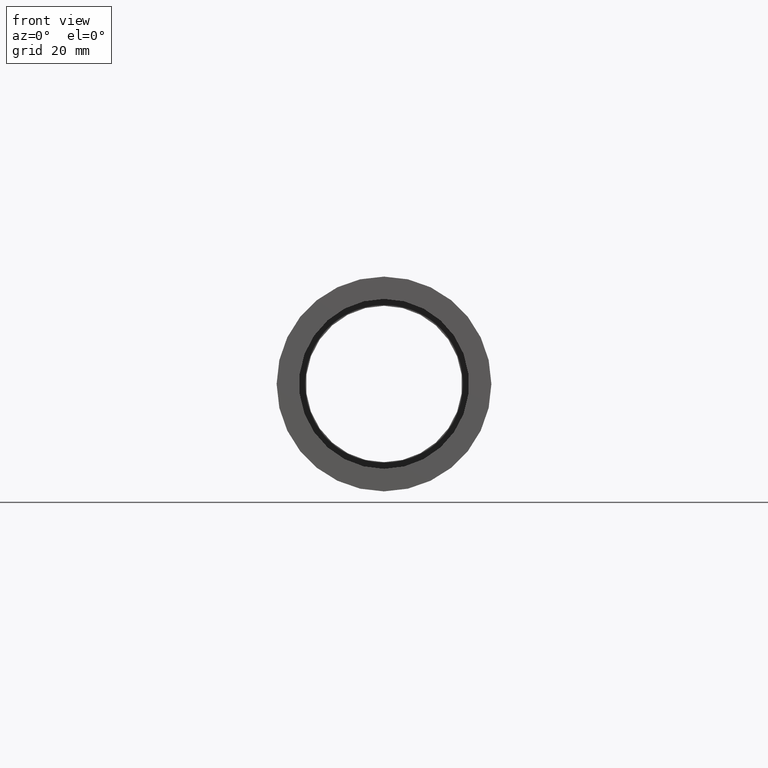
[diagram: clean part render]
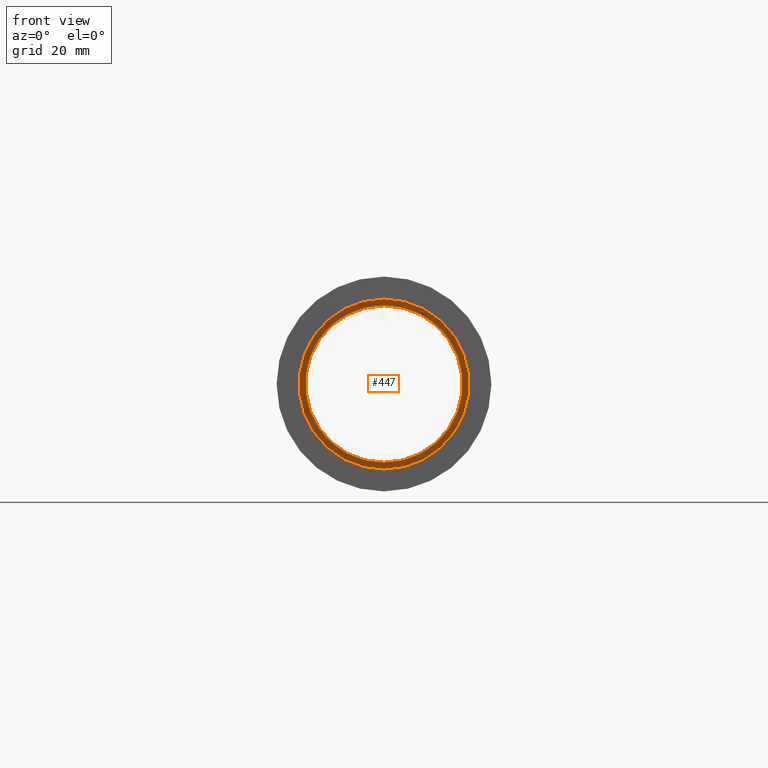
[diagram: same view with one face highlighted and labeled with its STEP entity id]
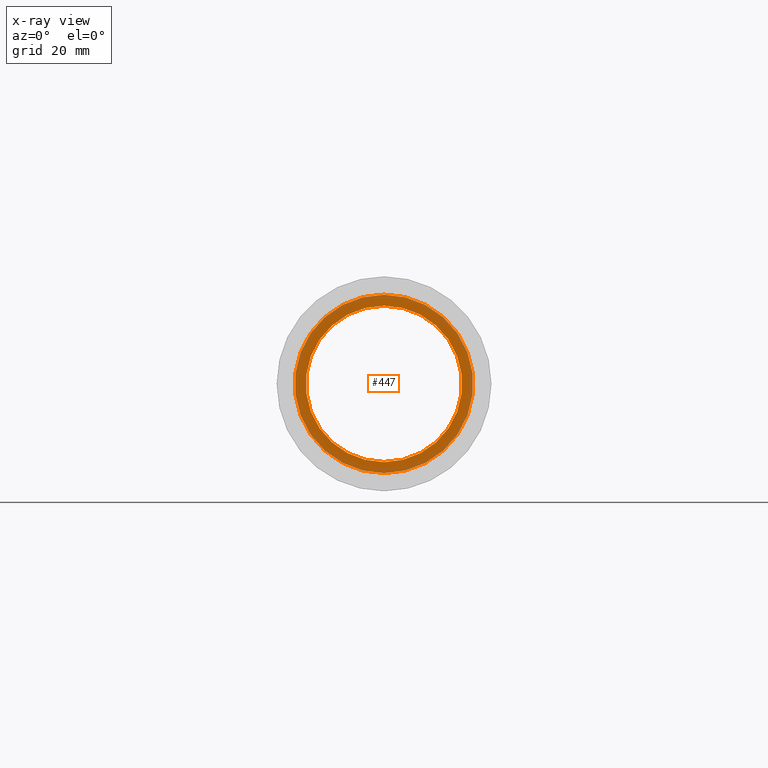
[diagram: x-ray of the same camera — body ghosted, the highlighted face saturated]
A machine part, front view. The second image highlights one B-rep face of the part: STEP entity #447.
The next image is the same camera in x-ray: the body ghosted, the highlighted face saturated — about 40% of this face is hidden behind the body in this view.
In plain terms, the highlighted planar face has unit normal (-0, 1, 0).
Its self-contained STEP definition (entity closure, byte-faithful):
#14 = DIRECTION ( 'NONE',  ( 0.0000000000000000000, 0.0000000000000000000, 1.000000000000000000 ) ) ;
#39 = VERTEX_POINT ( 'NONE', #455 ) ;
#43 = PLANE ( 'NONE',  #217 ) ;
#66 = CIRCLE ( 'NONE', #294, 21.10000000000000100 ) ;
#84 = FACE_BOUND ( 'NONE', #171, .T. ) ;
#93 = AXIS2_PLACEMENT_3D ( 'NONE', #565, #460, #324 ) ;
#142 = CARTESIAN_POINT ( 'NONE',  ( 0.0000000000000000000, 151.3999999999999800, 0.0000000000000000000 ) ) ;
#147 = DIRECTION ( 'NONE',  ( 0.0000000000000000000, 0.0000000000000000000, 1.000000000000000000 ) ) ;
#154 = VERTEX_POINT ( 'NONE', #276 ) ;
#156 = FACE_OUTER_BOUND ( 'NONE', #270, .T. ) ;
#171 = EDGE_LOOP ( 'NONE', ( #180, #439 ) ) ;
#180 = ORIENTED_EDGE ( 'NONE', *, *, #535, .T. ) ;
#194 = DIRECTION ( 'NONE',  ( 0.0000000000000000000, 0.0000000000000000000, 1.000000000000000000 ) ) ;
#203 = ORIENTED_EDGE ( 'NONE', *, *, #332, .F. ) ;
#217 = AXIS2_PLACEMENT_3D ( 'NONE', #624, #571, #147 ) ;
#222 = CIRCLE ( 'NONE', #93, 21.10000000000000100 ) ;
#238 = CIRCLE ( 'NONE', #541, 18.50000000000000000 ) ;
#240 = DIRECTION ( 'NONE',  ( -0.0000000000000000000, 1.000000000000000000, -0.0000000000000000000 ) ) ;
#241 = VERTEX_POINT ( 'NONE', #530 ) ;
#270 = EDGE_LOOP ( 'NONE', ( #203, #356 ) ) ;
#276 = CARTESIAN_POINT ( 'NONE',  ( 0.0000000000000000000, 151.3999999999999800, 21.10000000000000100 ) ) ;
#277 = AXIS2_PLACEMENT_3D ( 'NONE', #142, #523, #373 ) ;
#281 = CIRCLE ( 'NONE', #277, 18.50000000000000000 ) ;
#294 = AXIS2_PLACEMENT_3D ( 'NONE', #297, #381, #14 ) ;
#297 = CARTESIAN_POINT ( 'NONE',  ( 0.0000000000000000000, 151.3999999999999800, 0.0000000000000000000 ) ) ;
#324 = DIRECTION ( 'NONE',  ( 0.0000000000000000000, 0.0000000000000000000, 1.000000000000000000 ) ) ;
#332 = EDGE_CURVE ( 'NONE', #154, #241, #66, .T. ) ;
#356 = ORIENTED_EDGE ( 'NONE', *, *, #420, .F. ) ;
#373 = DIRECTION ( 'NONE',  ( 0.0000000000000000000, 0.0000000000000000000, 1.000000000000000000 ) ) ;
#381 = DIRECTION ( 'NONE',  ( -0.0000000000000000000, 1.000000000000000000, -0.0000000000000000000 ) ) ;
#419 = CARTESIAN_POINT ( 'NONE',  ( 0.0000000000000000000, 151.3999999999999800, 0.0000000000000000000 ) ) ;
#420 = EDGE_CURVE ( 'NONE', #241, #154, #222, .T. ) ;
#439 = ORIENTED_EDGE ( 'NONE', *, *, #524, .T. ) ;
#447 = ADVANCED_FACE ( 'NONE', ( #156, #84 ), #43, .F. ) ;
#455 = CARTESIAN_POINT ( 'NONE',  ( 2.265596578422603400E-015, 151.3999999999999800, -18.50000000000000000 ) ) ;
#460 = DIRECTION ( 'NONE',  ( -0.0000000000000000000, 1.000000000000000000, -0.0000000000000000000 ) ) ;
#523 = DIRECTION ( 'NONE',  ( -0.0000000000000000000, 1.000000000000000000, -0.0000000000000000000 ) ) ;
#524 = EDGE_CURVE ( 'NONE', #39, #573, #281, .T. ) ;
#528 = CARTESIAN_POINT ( 'NONE',  ( 0.0000000000000000000, 151.3999999999999800, 18.50000000000000000 ) ) ;
#530 = CARTESIAN_POINT ( 'NONE',  ( 2.584004746200915400E-015, 151.3999999999999800, -21.10000000000000100 ) ) ;
#535 = EDGE_CURVE ( 'NONE', #573, #39, #238, .T. ) ;
#541 = AXIS2_PLACEMENT_3D ( 'NONE', #419, #240, #194 ) ;
#565 = CARTESIAN_POINT ( 'NONE',  ( 0.0000000000000000000, 151.3999999999999800, 0.0000000000000000000 ) ) ;
#571 = DIRECTION ( 'NONE',  ( -0.0000000000000000000, 1.000000000000000000, 0.0000000000000000000 ) ) ;
#573 = VERTEX_POINT ( 'NONE', #528 ) ;
#624 = CARTESIAN_POINT ( 'NONE',  ( 21.10000000000000100, 151.3999999999999800, 0.0000000000000000000 ) ) ;